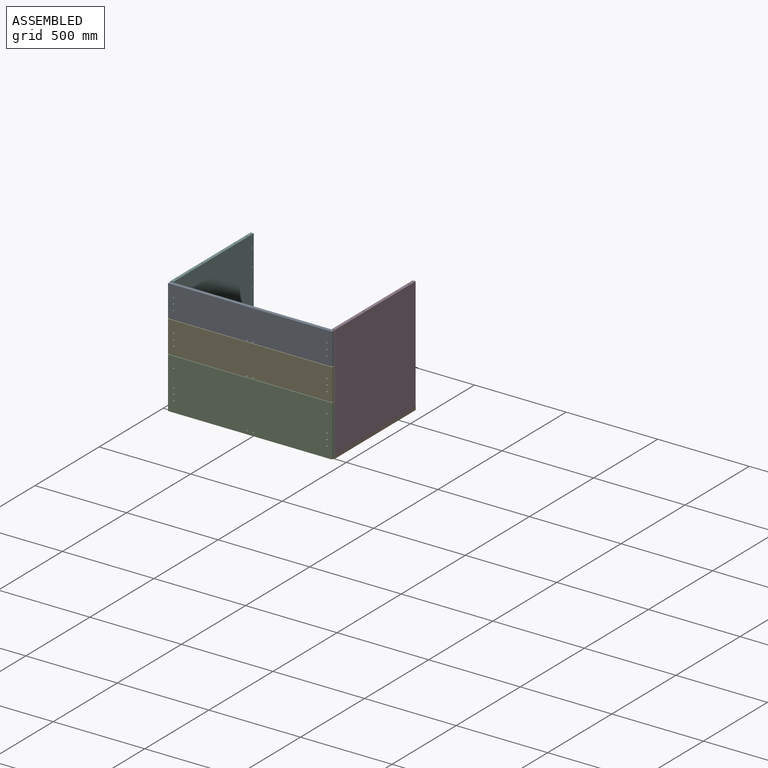
[diagram: assembled view]
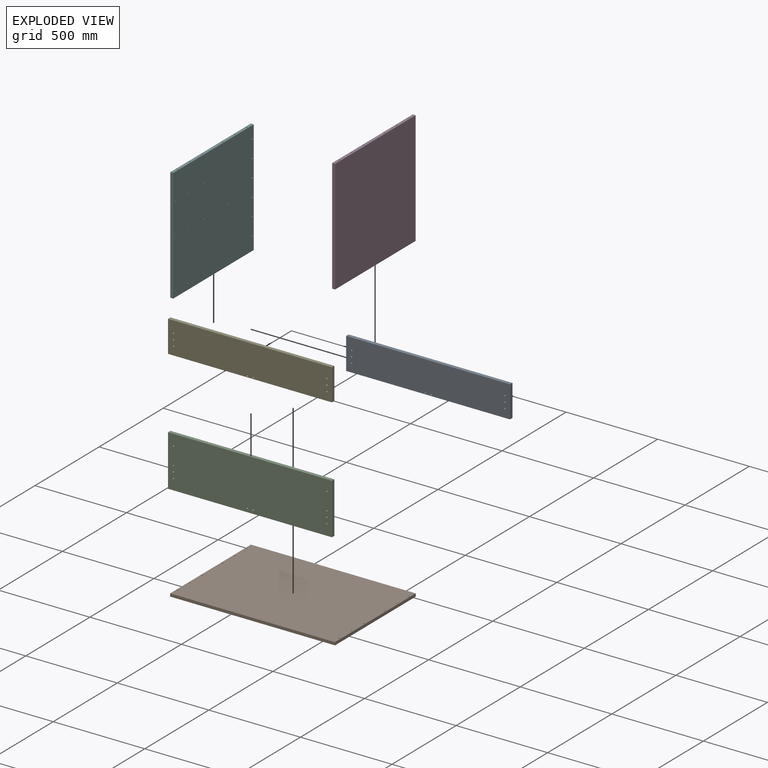
[diagram: exploded view]
GUIDED TOUR — MATED ASSEMBLY (Onshape document 011e6cdf299da2cae8ca8405, AutoMate assembly 011e6cdf299da2cae8ca8405_b86175a0bc99ca20b51eede3_9ca1fc3cda99bdc942da0c85_default)

This assembly has 6 components, labeled P0..P5 below (a component is one placed occurrence of a part; the same part can appear more than once), held together by 12 mates. A mate is a constraint between two components; its type names the relative motion it leaves free:
  CYLINDRICAL — leaves both rotation about and translation along the listed axis free,
  PLANAR — leaves sliding in the plane through the listed point (normal = the listed direction) and rotation about that normal free.
Axis/direction vectors are unit vectors and 'through' points are millimeter coordinates, both in the assembly's world frame.

MATES
  1. PLANAR "Planar 2": P1 <-> P3, direction (0.000, 0.000, 1.000) through (-356.89, 165.61, 109.65) mm
  2. CYLINDRICAL "Cylindrical 2": P5 <-> P1, axis (0.000, 0.000, -1.000) through (-798.89, 435.61, 109.65) mm
  3. PLANAR "Planar 5": P2 <-> P1, direction (0.000, 0.000, -1.000) through (-356.89, -159.89, 96.65) mm
  4. PLANAR "Planar 6": P4 <-> P2, direction (1.000, 0.000, 0.000) through (90.61, -159.89, 465.15) mm
  5. PLANAR "Planar 1": P5 <-> P1, direction (0.000, 0.000, -1.000) through (-798.89, 165.57, 109.65) mm
  6. CYLINDRICAL "Cylindrical 3": P3 <-> P1, axis (0.000, 0.000, -1.000) through (85.11, -104.39, 123.65) mm
  7. PLANAR "Planar 8": P4 <-> P2, direction (0.000, 0.000, -1.000) through (-356.89, -159.89, 378.65) mm
  8. PLANAR "Planar 4": P3 <-> P2, direction (1.000, 0.000, 0.000) through (93.11, 165.61, 419.65) mm
  9. PLANAR "Planar 7": P4 <-> P2, direction (0.000, 1.000, 0.000) through (-356.89, -150.39, 465.15) mm
  10. PLANAR "Planar 3": P2 <-> P3, direction (0.000, 1.000, 0.000) through (-356.89, -150.39, 236.15) mm
  11. CYLINDRICAL "Cylindrical 4": P3 <-> P1, axis (0.000, 0.000, -1.000) through (85.11, 435.61, 123.65) mm
  12. CYLINDRICAL "Cylindrical 1": P5 <-> P1, axis (0.000, 0.000, -1.000) through (-798.89, -104.39, 109.65) mm

ASSEMBLY ORDER
  1. P4 — the base component [order verified]
  2. P2 [order verified]
  3. P0 [order verified]
  4. P3 [order verified]
  5. P5 [order verified]
  6. P1 [order verified]
Order-tag legend:
  [order verified] — this step's position reverses a verified removal order: the component was checked to insert without passing through the ones already placed.

Of the 6 components, 4 carry the full construction recipe — the FeatureScript program that regenerates the part's solid from scratch; the rest are supplied as boundary geometry only.
Each toured component is shown spotlighted twice — in the assembled view, then in the exploded view, where a leader line traces a displaced component back to its assembled socket (saturated green if recipe-attached, orange if geometry-only; every other component desaturated gray) — followed by its recipe or geometry summary and the mates that hold it.
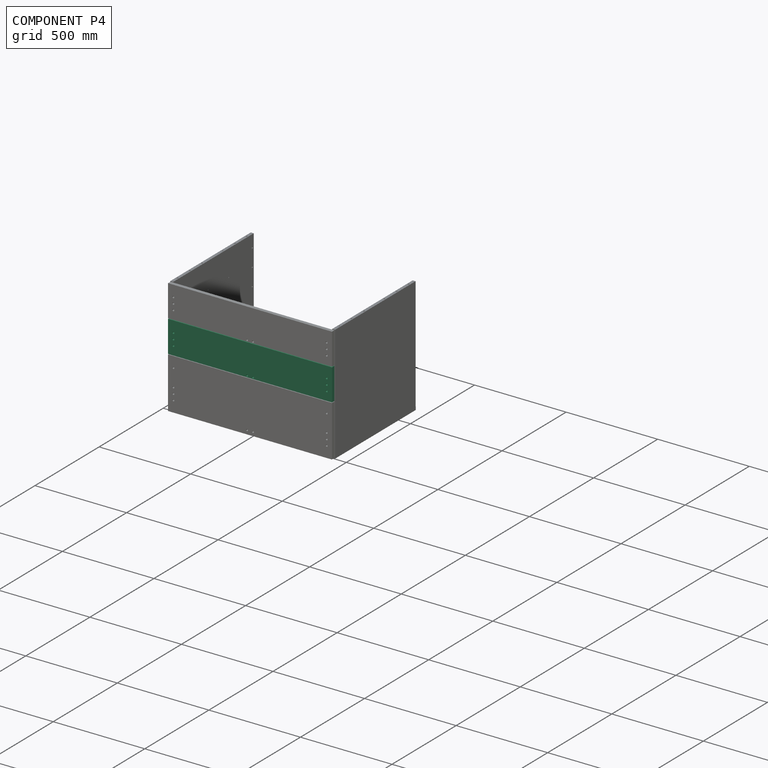
[diagram: component P4 — assembled]
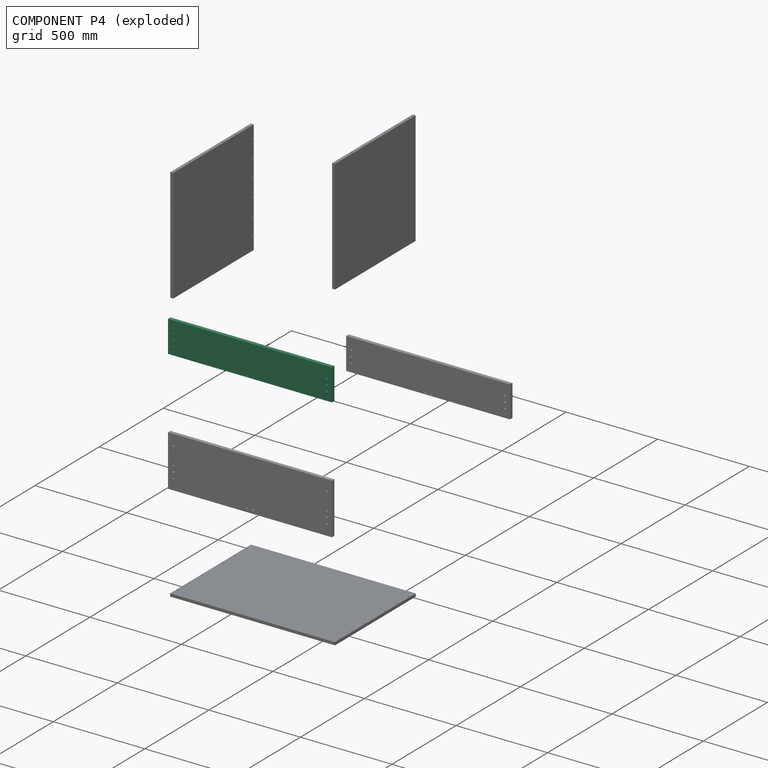
[diagram: component P4 — exploded]
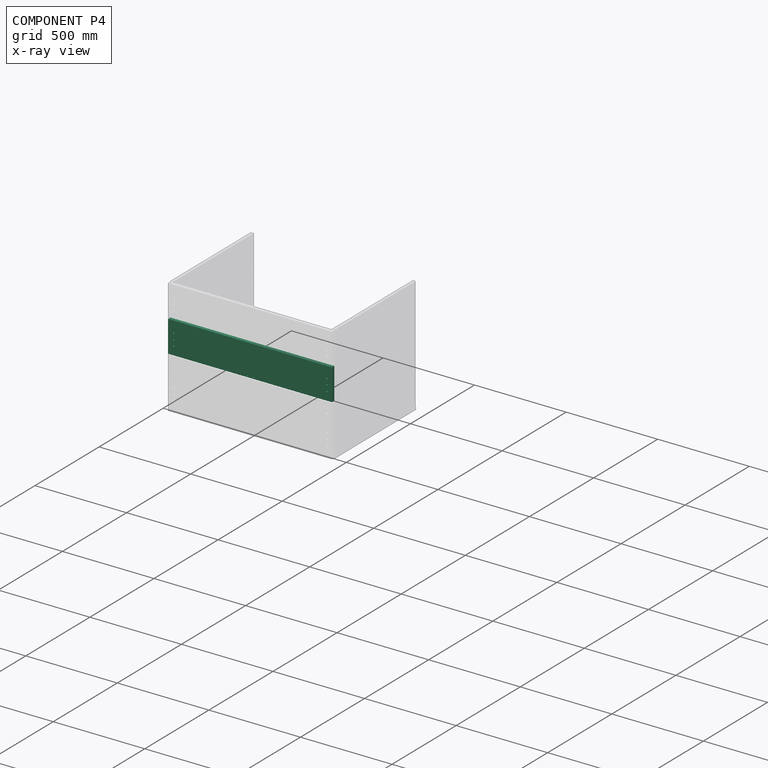
[diagram: component P4 — x-ray view]
COMPONENT P4 — same part as P0 (CADFS 00520418); its construction recipe is shown at P0.
Held by: PLANAR mate "Planar 6" to P2; PLANAR mate "Planar 8" to P2; PLANAR mate "Planar 7" to P2.
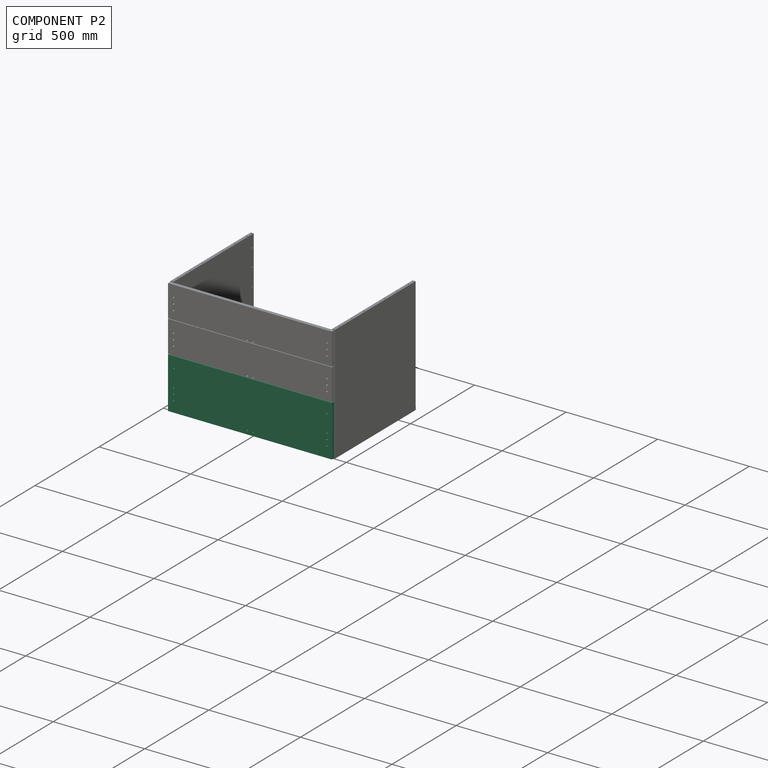
[diagram: component P2 — assembled]
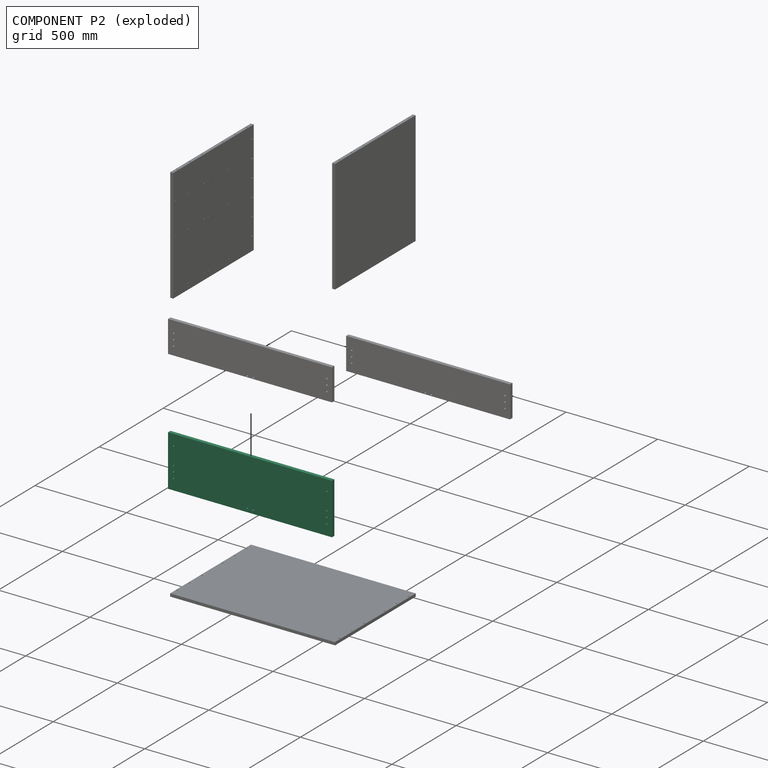
[diagram: component P2 — exploded]
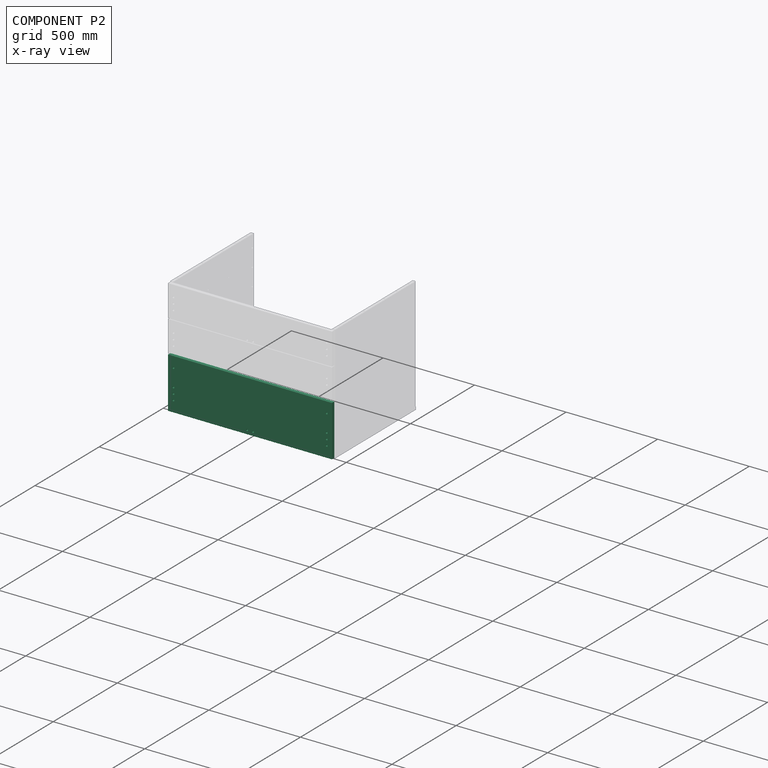
[diagram: component P2 — x-ray view]
COMPONENT P2 — recipe-attached (CADFS 00520417, mesh-verified: the recipe's output STEP matches this component's geometry to below the mesh-comparison resolution (tessellation chordal tolerance ~1.41 mm)).
Held by: PLANAR mate "Planar 5" to P1; PLANAR mate "Planar 6" to P4; PLANAR mate "Planar 8" to P4; PLANAR mate "Planar 4" to P3; PLANAR mate "Planar 7" to P4; PLANAR mate "Planar 3" to P3.
Construction recipe (FeatureScript — the CAD program that rebuilds this solid; sketch coordinates are in the units given by the * unit suffixes, e.g. mm):

FeatureScript 1511;
import(path : "onshape/std/geometry.fs", version : "1511.0");
import(path : "onshape/std/common.fs", version : "1511.0");
const mm = millimeter;
const VERTEX = EntityType.VERTEX;
const EDGE = EntityType.EDGE;
const FACE = EntityType.FACE;
const BODY = EntityType.BODY;
function v(x, y){return vector(x, y);}
function OD(order){return orderDisambiguation(order);}
function OSD(set){return originalSetDisambiguation(set);}
function TD(topology){return topologyDisambiguation(topology);}
function TDD(query){return trueDependencyDisambiguation(query);}
function sQuery(a, b, c) {return sketchEntityQuery(a, b, c);}

annotation { "Feature Type Name" : "Feature", "Feature Type Description" : "" }
export const myFeature = defineFeature(function(context is Context, id is Id, definition is map)
    precondition{}
    {
        {
            var Q0;
            Q0=qCreatedBy(makeId("Right.planeOp"),FACE);
            var sketch = newSketch(context, id + "F0", { "sketchPlane" : qUnion([Q0])});
            skLineSegment(sketch, "E0.bottom", {"start": v(0, 0) * mm, "end": v(-19, 0) * mm});
            skLineSegment(sketch, "E0.top", {"start": v(0, 279) * mm, "end": v(-19, 279) * mm});
            skLineSegment(sketch, "E0.left", {"start": v(0, 0) * mm, "end": v(0, 279) * mm});
            skLineSegment(sketch, "E0.right", {"start": v(-19, 0) * mm, "end": v(-19, 279) * mm});
            skSolve(sketch);
        }
        {
            var Q0;
            Q0=makeQuery(id+"F0.imprint","IMPRINT",FACE,{"disambiguationData":[TD([[makeQuery(id+"F0.imprint","IMPRINT",EDGE,{"derivedFrom":sQuery(id+"F0.wireOp",EDGE,"E0.bottom")}),-1.0]])]});
            extrude(context, id + "F1", {"entities" : qUnion([Q0]), "depth" : 895 * mm, "offsetDistance" : 25 * mm});
        }
        {
            var Q0;
            Q0=makeQuery(id+"F1.opExtrude","SWEPT_FACE",FACE,{"disambiguationData":[OSD([sQuery(id+"F0.wireOp",EDGE,"E0.right")])]});
            var sketch = newSketch(context, id + "F2", { "sketchPlane" : qUnion([Q0])});
            skPoint(sketch, "E1", {"position": v(29, 60.5) * mm});
            skPoint(sketch, "E2", {"position": v(29, 92.5) * mm});
            skPoint(sketch, "E3", {"position": v(29, 124.5) * mm});
            skPoint(sketch, "E4", {"position": v(29, 220.5) * mm});
            skLineSegment(sketch, "E5", {"start": v(447.5, 279) * mm, "end": v(447.5, 0) * mm, "construction": true});
            skPoint(sketch, "E6.MirrorP", {"position": v(866, 220.5) * mm});
            skPoint(sketch, "E7.MirrorP", {"position": v(866, 92.5) * mm});
            skPoint(sketch, "E8.MirrorP", {"position": v(866, 124.5) * mm});
            skPoint(sketch, "E9.MirrorP", {"position": v(866, 60.5) * mm});
            skLineSegment(sketch, "E10", {"start": v(29, 220.5) * mm, "end": v(29, 60.5) * mm, "construction": true});
            skLineSegment(sketch, "E11", {"start": v(13.5, 174.23) * mm, "end": v(13.5, 60.5) * mm, "construction": true});
            skLineSegment(sketch, "E12", {"start": v(13.5, 60.5) * mm, "end": v(29, 60.5) * mm, "construction": true});
            skLineSegment(sketch, "E13", {"start": v(29, 60.5) * mm, "end": v(29, 13) * mm, "construction": true});
            skLineSegment(sketch, "E14", {"start": v(29, 13) * mm, "end": v(447.5, 13) * mm, "construction": true});
            skLineSegment(sketch, "E15", {"start": v(29, 21) * mm, "end": v(447.5, 21) * mm, "construction": true});
            skPoint(sketch, "E16", {"position": v(431.5, 21) * mm});
            skPoint(sketch, "E17.MirrorP", {"position": v(463.5, 21) * mm});
            skSolve(sketch);
        }
        {
            var Q0;
            Q0=sQuery(id+"F2.wireOp",VERTEX,"E10.start");
            var Q1;
            Q1=sQuery(id+"F2.wireOp",VERTEX,"E3");
            var Q2;
            Q2=sQuery(id+"F2.wireOp",VERTEX,"E2");
            var Q3;
            Q3=sQuery(id+"F2.wireOp",VERTEX,"E1");
            var Q4;
            Q4=sQuery(id+"F2.wireOp",VERTEX,"E9.MirrorP");
            var Q5;
            Q5=sQuery(id+"F2.wireOp",VERTEX,"E7.MirrorP");
            var Q6;
            Q6=sQuery(id+"F2.wireOp",VERTEX,"E8.MirrorP");
            var Q7;
            Q7=sQuery(id+"F2.wireOp",VERTEX,"E6.MirrorP");
            var Q8;
            Q8=makeQuery(id+"F1.opExtrude","SWEPT_BODY",BODY,{"disambiguationData":[OSD([sQuery(id+"F0.wireOp",EDGE,"E0.bottom"),sQuery(id+"F0.wireOp",EDGE,"E0.top"),sQuery(id+"F0.wireOp",EDGE,"E0.left"),sQuery(id+"F0.wireOp",EDGE,"E0.right")])]});
            hole(context, id + "F3", {"style" : HoleStyle.SIMPLE, "endStyle" : HoleEndStyle.BLIND, "holeDiameter" : 10 * mm, "majorDiameter" : 5 * mm, "holeDepth" : 13 * mm, "isTappedThrough" : true, "tappedDepth" : 12 * mm, "tapClearance" : 3, "startFromSketch" : true, "locations" : qUnion([Q0, Q1, Q2, Q3, Q4, Q5, Q6, Q7]), "scope" : qUnion([Q8])});
        }
        {
            var Q0;
            Q0=sQuery(id+"F2.wireOp",VERTEX,"E16");
            var Q1;
            Q1=sQuery(id+"F2.wireOp",VERTEX,"E17.MirrorP");
            var Q2;
            Q2=makeQuery(id+"F1.opExtrude","SWEPT_BODY",BODY,{"disambiguationData":[OSD([sQuery(id+"F0.wireOp",EDGE,"E0.bottom"),sQuery(id+"F0.wireOp",EDGE,"E0.top"),sQuery(id+"F0.wireOp",EDGE,"E0.left"),sQuery(id+"F0.wireOp",EDGE,"E0.right")])]});
            hole(context, id + "F4", {"style" : HoleStyle.SIMPLE, "endStyle" : HoleEndStyle.BLIND, "holeDiameter" : 10 * mm, "majorDiameter" : 5 * mm, "holeDepth" : 10 * mm, "isTappedThrough" : true, "tappedDepth" : 12 * mm, "tapClearance" : 3, "startFromSketch" : true, "locations" : qUnion([Q0, Q1]), "scope" : qUnion([Q2])});
        }
    });
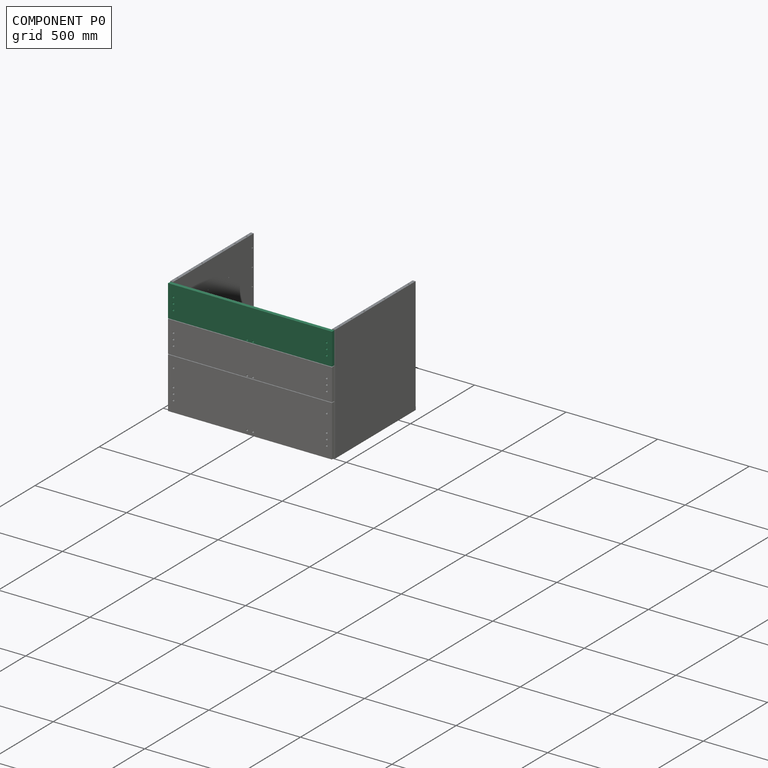
[diagram: component P0 — assembled]
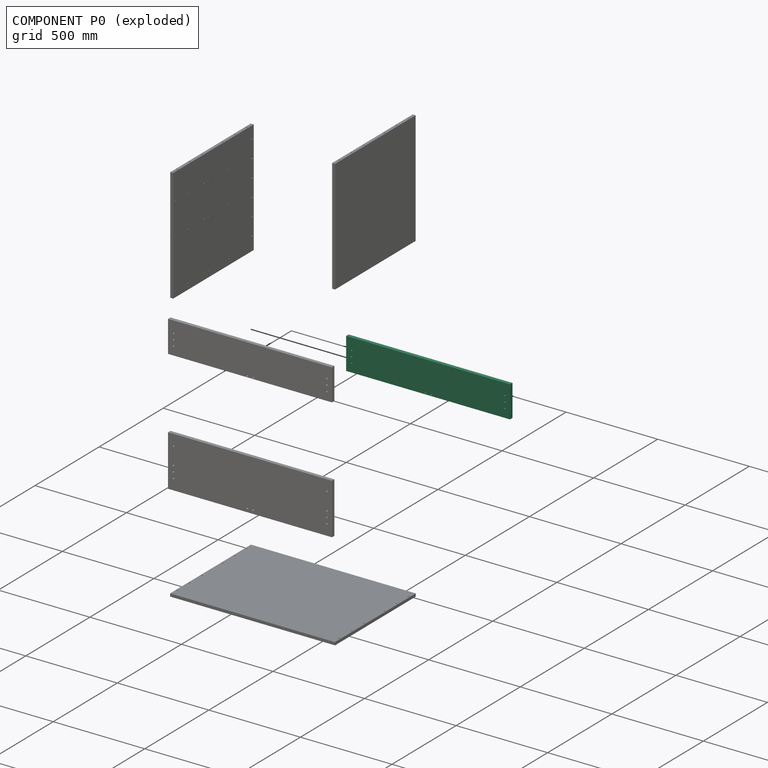
[diagram: component P0 — exploded]
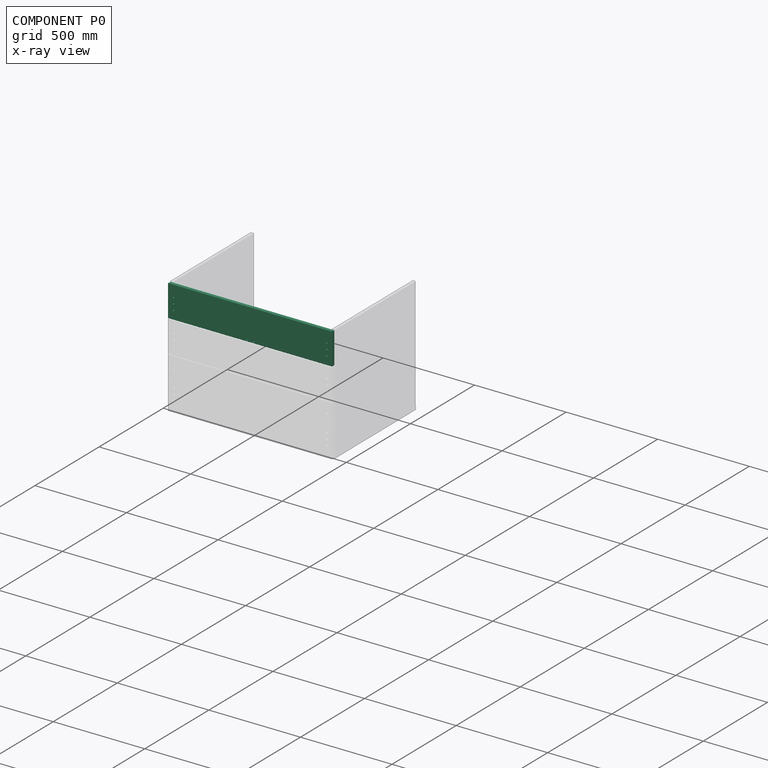
[diagram: component P0 — x-ray view]
COMPONENT P0 — recipe-attached (CADFS 00520418, mesh-verified: the recipe's output STEP matches this component's geometry to below the mesh-comparison resolution (tessellation chordal tolerance ~1.37 mm)).
Held by: no mates (free).
Construction recipe (FeatureScript — the CAD program that rebuilds this solid; sketch coordinates are in the units given by the * unit suffixes, e.g. mm):

FeatureScript 1511;
import(path : "onshape/std/geometry.fs", version : "1511.0");
import(path : "onshape/std/common.fs", version : "1511.0");
const mm = millimeter;
const VERTEX = EntityType.VERTEX;
const EDGE = EntityType.EDGE;
const FACE = EntityType.FACE;
const BODY = EntityType.BODY;
function v(x, y){return vector(x, y);}
function OD(order){return orderDisambiguation(order);}
function OSD(set){return originalSetDisambiguation(set);}
function TD(topology){return topologyDisambiguation(topology);}
function TDD(query){return trueDependencyDisambiguation(query);}
function sQuery(a, b, c) {return sketchEntityQuery(a, b, c);}

annotation { "Feature Type Name" : "Feature", "Feature Type Description" : "" }
export const myFeature = defineFeature(function(context is Context, id is Id, definition is map)
    precondition{}
    {
        {
            var Q0;
            Q0=qCreatedBy(makeId("Right.planeOp"),FACE);
            var sketch = newSketch(context, id + "F0", { "sketchPlane" : qUnion([Q0])});
            skLineSegment(sketch, "E0.bottom", {"start": v(0, 0) * mm, "end": v(-19, 0) * mm});
            skLineSegment(sketch, "E0.top", {"start": v(0, 173) * mm, "end": v(-19, 173) * mm});
            skLineSegment(sketch, "E0.left", {"start": v(0, 0) * mm, "end": v(0, 173) * mm});
            skLineSegment(sketch, "E0.right", {"start": v(-19, 0) * mm, "end": v(-19, 173) * mm});
            skSolve(sketch);
        }
        {
            var Q0;
            Q0=makeQuery(id+"F0.imprint","IMPRINT",FACE,{"disambiguationData":[TD([[makeQuery(id+"F0.imprint","IMPRINT",EDGE,{"derivedFrom":sQuery(id+"F0.wireOp",EDGE,"E0.bottom")}),-1.0]])]});
            extrude(context, id + "F1", {"entities" : qUnion([Q0]), "depth" : 895 * mm, "offsetDistance" : 25 * mm});
        }
        {
            var Q0;
            Q0=makeQuery(id+"F1.opExtrude","SWEPT_FACE",FACE,{"disambiguationData":[OSD([sQuery(id+"F0.wireOp",EDGE,"E0.right")])]});
            var sketch = newSketch(context, id + "F2", { "sketchPlane" : qUnion([Q0])});
            skLineSegment(sketch, "E1", {"start": v(447.5, 173) * mm, "end": v(447.5, 0) * mm, "construction": true});
            skLineSegment(sketch, "E2", {"start": v(13.5, 116) * mm, "end": v(13.5, 0) * mm, "construction": true});
            skLineSegment(sketch, "E3", {"start": v(13.5, 0) * mm, "end": v(29, 0) * mm, "construction": true});
            skLineSegment(sketch, "E4", {"start": v(29, 0) * mm, "end": v(29, 111.5) * mm, "construction": true});
            skPoint(sketch, "E5", {"position": v(29, 111.5) * mm});
            skPoint(sketch, "E6", {"position": v(29, 79.5) * mm});
            skPoint(sketch, "E7", {"position": v(29, 47.5) * mm});
            skPoint(sketch, "E8", {"position": v(431.5, 8) * mm});
            skLineSegment(sketch, "E9", {"start": v(29, 8) * mm, "end": v(447.5, 8) * mm, "construction": true});
            skPoint(sketch, "E10.MirrorP", {"position": v(463.5, 8) * mm});
            skPoint(sketch, "E11.MirrorP", {"position": v(866, 47.5) * mm});
            skPoint(sketch, "E12.MirrorP", {"position": v(866, 79.5) * mm});
            skPoint(sketch, "E13.MirrorP", {"position": v(866, 111.5) * mm});
            skSolve(sketch);
        }
        {
            var Q0;
            Q0=sQuery(id+"F2.wireOp",VERTEX,"E5");
            var Q1;
            Q1=sQuery(id+"F2.wireOp",VERTEX,"E6");
            var Q2;
            Q2=sQuery(id+"F2.wireOp",VERTEX,"E7");
            var Q3;
            Q3=sQuery(id+"F2.wireOp",VERTEX,"E8");
            var Q4;
            Q4=sQuery(id+"F2.wireOp",VERTEX,"E10.MirrorP");
            var Q5;
            Q5=sQuery(id+"F2.wireOp",VERTEX,"E11.MirrorP");
            var Q6;
            Q6=sQuery(id+"F2.wireOp",VERTEX,"E12.MirrorP");
            var Q7;
            Q7=sQuery(id+"F2.wireOp",VERTEX,"E13.MirrorP");
            var Q8;
            Q8=makeQuery(id+"F1.opExtrude","SWEPT_BODY",BODY,{"disambiguationData":[OSD([sQuery(id+"F0.wireOp",EDGE,"E0.bottom"),sQuery(id+"F0.wireOp",EDGE,"E0.top"),sQuery(id+"F0.wireOp",EDGE,"E0.left"),sQuery(id+"F0.wireOp",EDGE,"E0.right")])]});
            hole(context, id + "F3", {"style" : HoleStyle.SIMPLE, "endStyle" : HoleEndStyle.BLIND, "holeDiameter" : 10 * mm, "majorDiameter" : 5 * mm, "holeDepth" : 12 * mm, "isTappedThrough" : true, "tappedDepth" : 12 * mm, "tapClearance" : 3, "startFromSketch" : true, "locations" : qUnion([Q0, Q1, Q2, Q3, Q4, Q5, Q6, Q7]), "scope" : qUnion([Q8])});
        }
    });
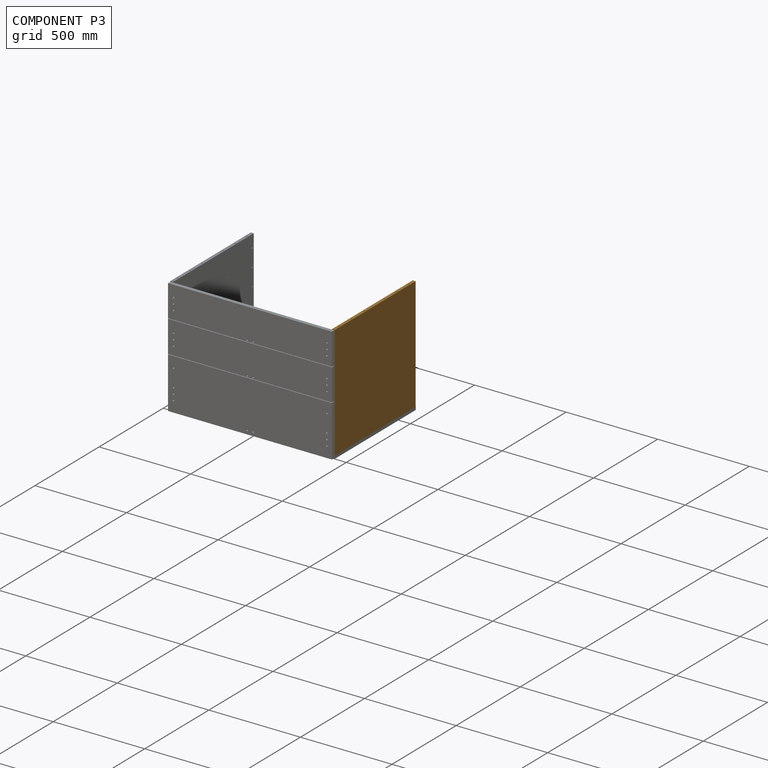
[diagram: component P3 — assembled]
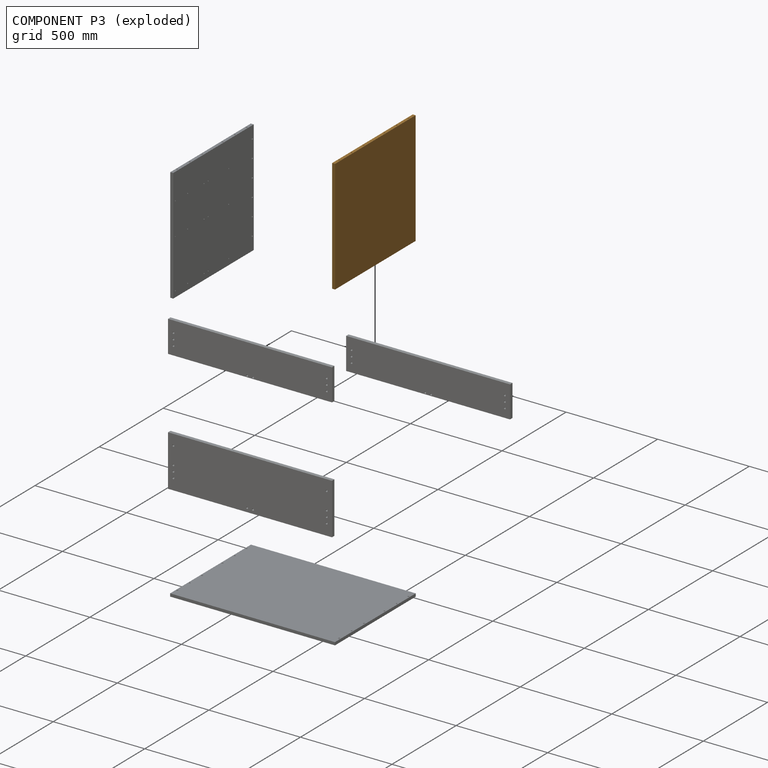
[diagram: component P3 — exploded]
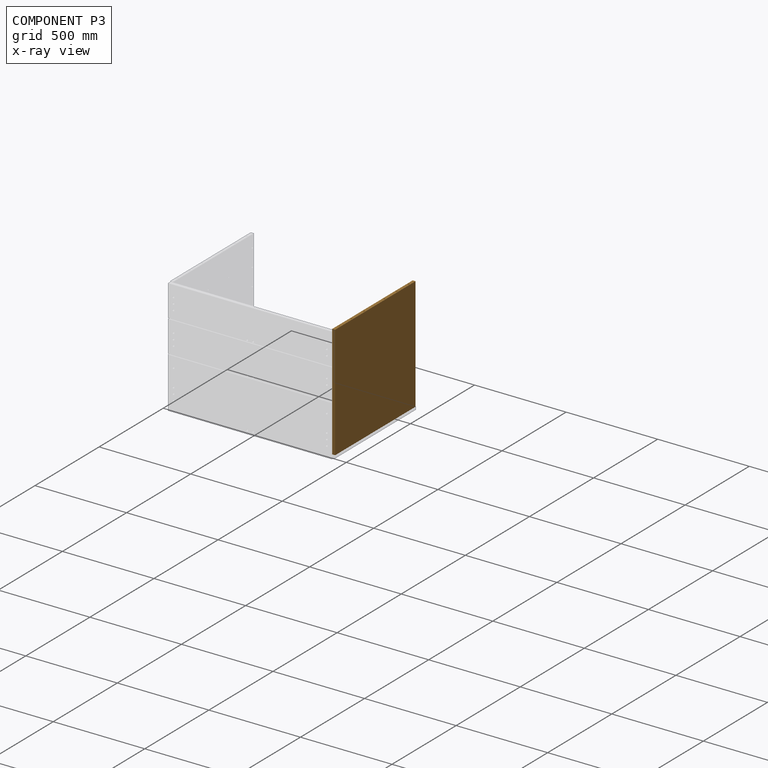
[diagram: component P3 — x-ray view]
COMPONENT P3 — geometry summary (no construction recipe available for this part):
  bounding box: 628.0 x 620.0 x 16.0 mm
  B-rep topology: 1 solid, 72 faces, 252 edges
  volume: 6205416 mm^3 (100% of its bounding box)
  symmetry: mirror-symmetric across its y mid-plane
Held by: PLANAR mate "Planar 2" to P1; CYLINDRICAL mate "Cylindrical 3" to P1; PLANAR mate "Planar 4" to P2; PLANAR mate "Planar 3" to P2; CYLINDRICAL mate "Cylindrical 4" to P1.
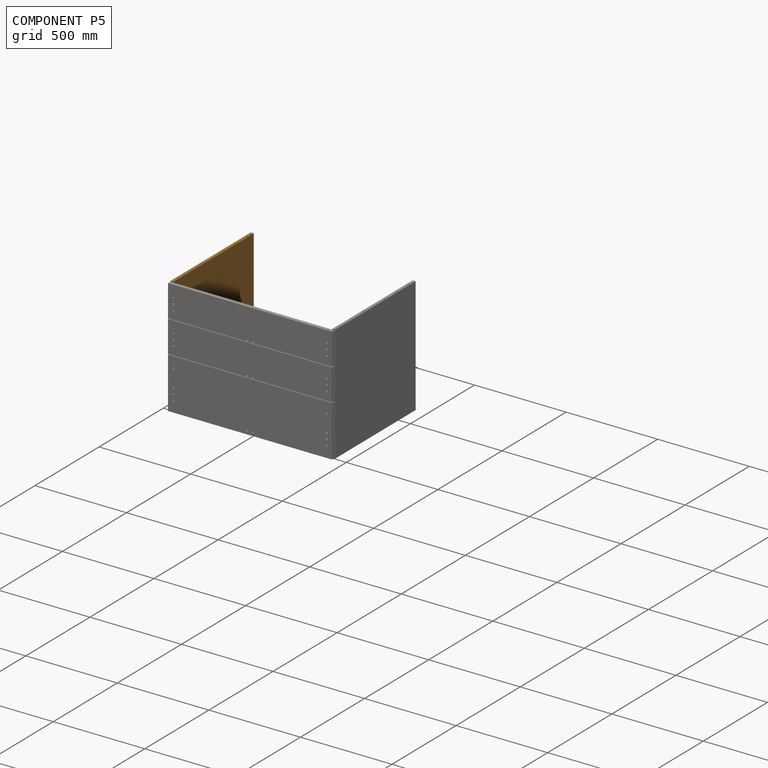
[diagram: component P5 — assembled]
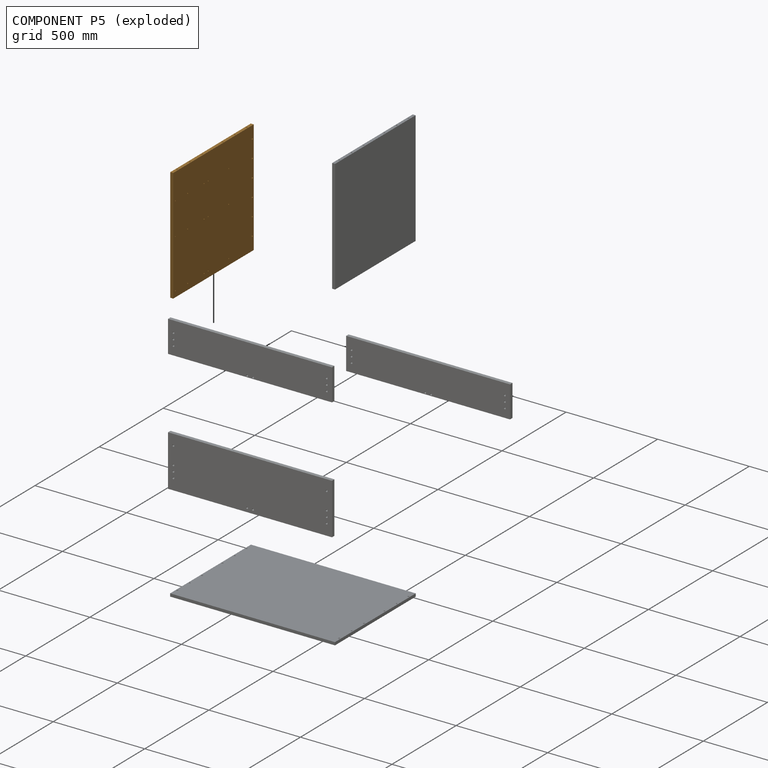
[diagram: component P5 — exploded]
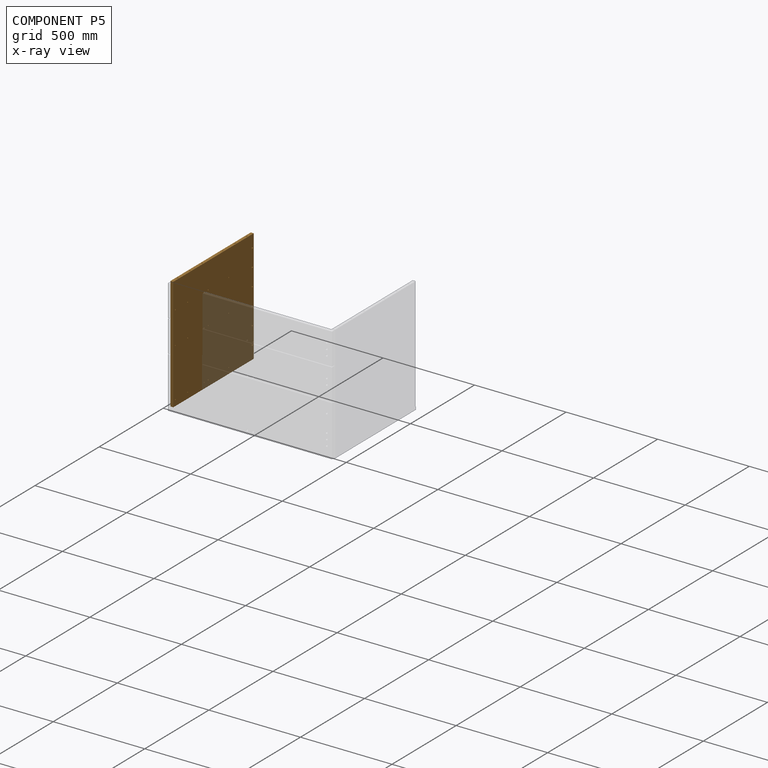
[diagram: component P5 — x-ray view]
COMPONENT P5 — geometry summary (no construction recipe available for this part):
  bounding box: 628.0 x 620.0 x 16.0 mm
  B-rep topology: 1 solid, 72 faces, 252 edges
  volume: 6205416 mm^3 (100% of its bounding box)
  symmetry: mirror-symmetric across its y mid-plane
Held by: CYLINDRICAL mate "Cylindrical 2" to P1; PLANAR mate "Planar 1" to P1; CYLINDRICAL mate "Cylindrical 1" to P1.
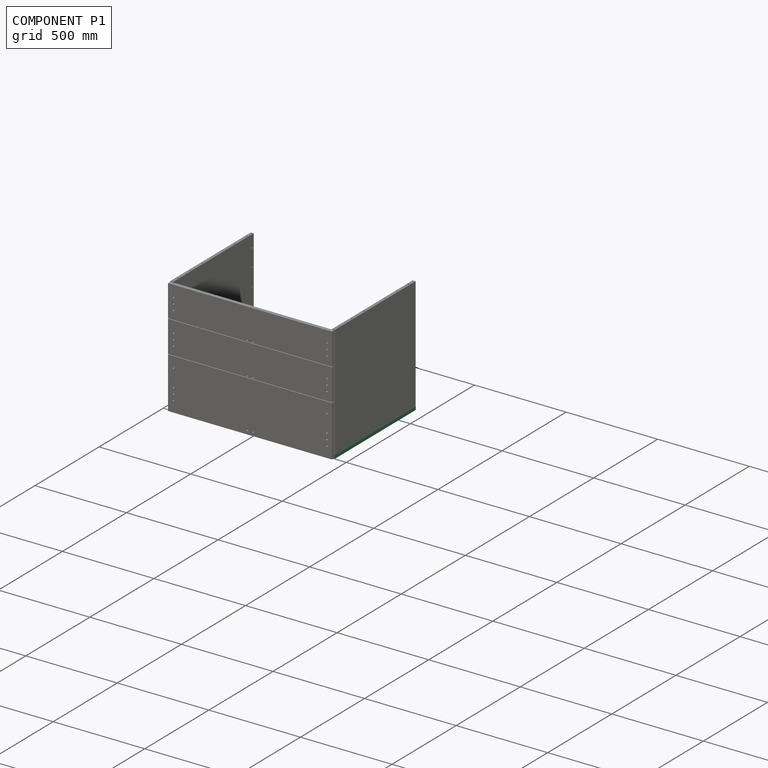
[diagram: component P1 — assembled]
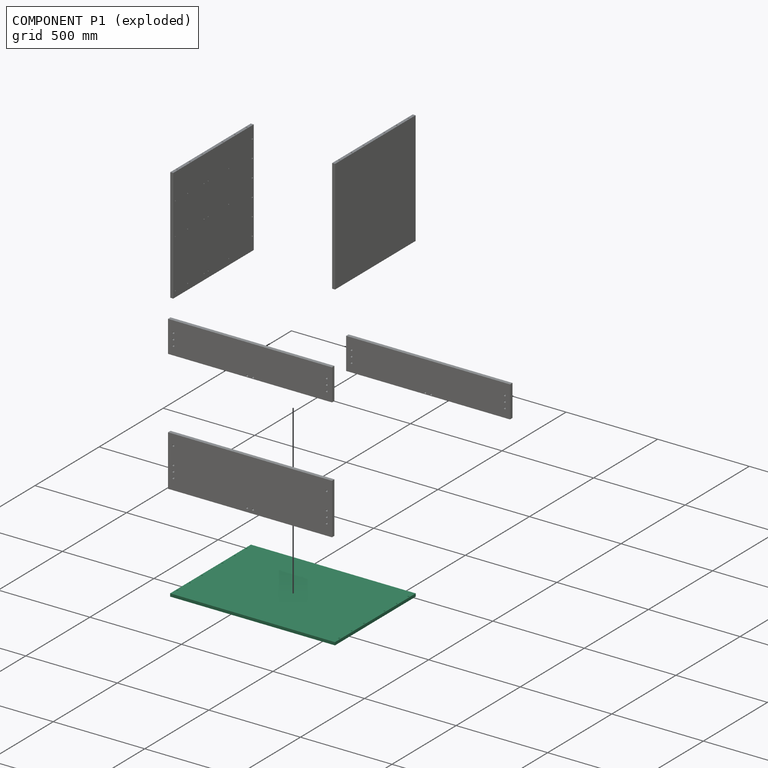
[diagram: component P1 — exploded]
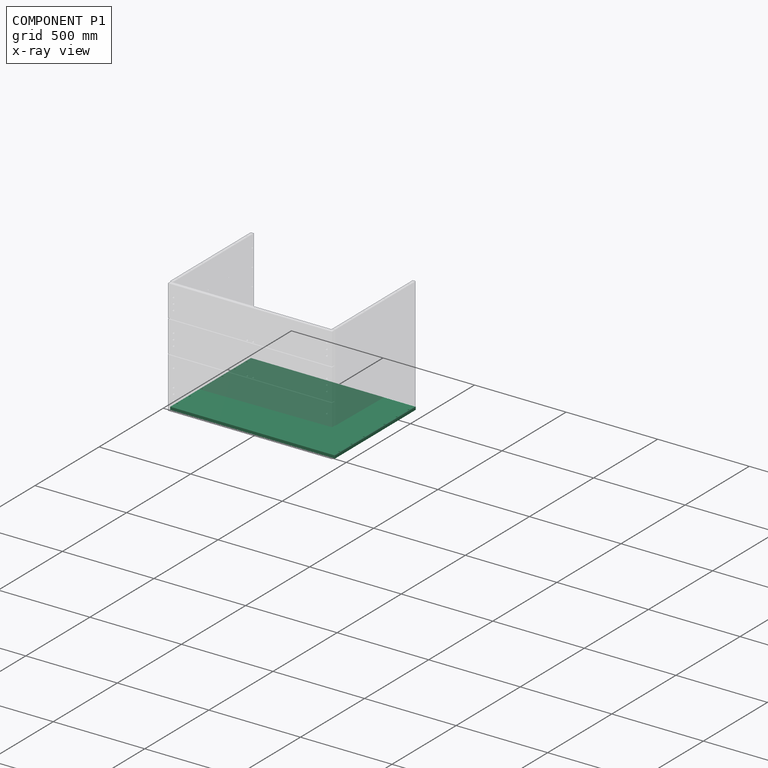
[diagram: component P1 — x-ray view]
COMPONENT P1 — recipe-attached (CADFS 00520413, mesh-verified: the recipe's output STEP matches this component's geometry to below the mesh-comparison resolution (tessellation chordal tolerance ~1.65 mm)).
Held by: PLANAR mate "Planar 2" to P3; CYLINDRICAL mate "Cylindrical 2" to P5; PLANAR mate "Planar 5" to P2; PLANAR mate "Planar 1" to P5; CYLINDRICAL mate "Cylindrical 3" to P3; CYLINDRICAL mate "Cylindrical 4" to P3; CYLINDRICAL mate "Cylindrical 1" to P5.
Construction recipe (FeatureScript — the CAD program that rebuilds this solid; sketch coordinates are in the units given by the * unit suffixes, e.g. mm):

FeatureScript 1511;
import(path : "onshape/std/geometry.fs", version : "1511.0");
import(path : "onshape/std/common.fs", version : "1511.0");
const mm = millimeter;
const VERTEX = EntityType.VERTEX;
const EDGE = EntityType.EDGE;
const FACE = EntityType.FACE;
const BODY = EntityType.BODY;
function v(x, y){return vector(x, y);}
function OD(order){return orderDisambiguation(order);}
function OSD(set){return originalSetDisambiguation(set);}
function TD(topology){return topologyDisambiguation(topology);}
function TDD(query){return trueDependencyDisambiguation(query);}
function sQuery(a, b, c) {return sketchEntityQuery(a, b, c);}

annotation { "Feature Type Name" : "Feature", "Feature Type Description" : "" }
export const myFeature = defineFeature(function(context is Context, id is Id, definition is map)
    precondition{}
    {
        {
            var Q0;
            Q0=qCreatedBy(makeId("Right.planeOp"),FACE);
            var sketch = newSketch(context, id + "F0", { "sketchPlane" : qUnion([Q0])});
            skLineSegment(sketch, "E0.bottom", {"start": v(-319.14, -32.9) * mm, "end": v(310.86, -32.9) * mm});
            skLineSegment(sketch, "E0.top", {"start": v(-319.14, -48.9) * mm, "end": v(310.86, -48.9) * mm});
            skLineSegment(sketch, "E0.left", {"start": v(-319.14, -32.9) * mm, "end": v(-319.14, -48.9) * mm});
            skLineSegment(sketch, "E0.right", {"start": v(310.86, -32.9) * mm, "end": v(310.86, -48.9) * mm});
            skSolve(sketch);
        }
        {
            var Q0;
            Q0 = qSketchRegion(id + "F0", true);
            extrude(context, id + "F1", {"entities" : qUnion([Q0]), "endBound" : BoundingType.SYMMETRIC, "depth" : 900 * mm, "offsetDistance" : 25 * mm});
        }
        {
            var Q0;
            Q0=makeQuery(id+"F1.opExtrude","SWEPT_FACE",FACE,{"disambiguationData":[OSD([sQuery(id+"F0.wireOp",EDGE,"E0.bottom")])]});
            var sketch = newSketch(context, id + "F2", { "sketchPlane" : qUnion([Q0])});
            skLineSegment(sketch, "E1.0", {"start": v(-450, -319.14) * mm, "end": v(-450, 310.86) * mm, "construction": true});
            skCircle(sketch, "E2", {"center": v(-442, -274.14) * mm, "radius": 4 * mm});
            skLineSegment(sketch, "E3", {"start": v(-442, -274.14) * mm, "end": v(-442, 265.86) * mm, "construction": true});
            skCircle(sketch, "E4", {"center": v(-442, -178.14) * mm, "radius": 4 * mm});
            skCircle(sketch, "E5", {"center": v(-442, -82.14) * mm, "radius": 4 * mm});
            skCircle(sketch, "E6", {"center": v(-442, 77.86) * mm, "radius": 4 * mm});
            skCircle(sketch, "E7", {"center": v(-442, 173.86) * mm, "radius": 4 * mm});
            skCircle(sketch, "E8", {"center": v(-442, 265.86) * mm, "radius": 4 * mm});
            skLineSegment(sketch, "E9", {"start": v(-442, -4.14) * mm, "end": v(-450, -4.14) * mm, "construction": true});
            skCircle(sketch, "E10.MirrorC", {"center": v(442, 265.86) * mm, "radius": 4 * mm});
            skCircle(sketch, "E11.MirrorC", {"center": v(442, -274.14) * mm, "radius": 4 * mm});
            skLineSegment(sketch, "E12.MirrorCS", {"start": v(442, -4.14) * mm, "end": v(450, -4.14) * mm, "construction": true});
            skCircle(sketch, "E13.MirrorC", {"center": v(442, 173.86) * mm, "radius": 4 * mm});
            skCircle(sketch, "E14.MirrorC", {"center": v(442, 77.86) * mm, "radius": 4 * mm});
            skCircle(sketch, "E15.MirrorC", {"center": v(442, -178.14) * mm, "radius": 4 * mm});
            skCircle(sketch, "E16.MirrorC", {"center": v(442, -82.14) * mm, "radius": 4 * mm});
            skLineSegment(sketch, "E17.MirrorCS", {"start": v(450, -319.14) * mm, "end": v(450, 310.86) * mm, "construction": true});
            skLineSegment(sketch, "E18.MirrorCS", {"start": v(442, -274.14) * mm, "end": v(442, 265.86) * mm, "construction": true});
            skSolve(sketch);
        }
        {
            var Q0;
            Q0 = qSketchRegion(id + "F2", true);
            extrude(context, id + "F3", {"entities" : qUnion([Q0]), "operationType" : NewBodyOperationType.REMOVE, "oppositeDirection" : true, "depth" : 14 * mm, "offsetDistance" : 25 * mm});
        }
    });
PROVENANCE & LICENSES
Assembly (occurrences, transforms, mates, per-part STEP geometry): AutoMate dataset, Zenodo record 7776208, CC0.
Construction recipes: CADFS (HuggingFace VladPyatov/CADFS, CC-BY-4.0, layered over the ABC dataset), FeatureScript reconstruction programs keyed by ABC model id.
Join: ABC meta listings map ABC model id -> Onshape documentId; within a shared document, parts are matched by geometric signature (bounding-box dims + volume at 0.1% relative tolerance, exact B-rep face/solid counts).
Verification: 4 of this assembly's 6 components carry a recipe attachment, and every attachment is mesh-verified: the CADFS STEP and the AutoMate member STEP were compared as meshes in their shared local frame (symmetric sampled-point-to-mesh distance); worst across the 4 attachments: below the mesh-comparison resolution (tessellation chordal tolerance ~1.65 mm) on a 1099 mm part.
Renders: orthographic iso camera (az 35 / el 25); the floor grid conveys scale (grid pitch printed in each image; no ruler). In the exploded view each component is displaced by its stored offset vector: the offsets alone carry the explosion direction (mate normal/axis signs are not orientation cues and do not encode it), and separation distances are assigned per mate-chain, not proportionally to assembly-order depth.
